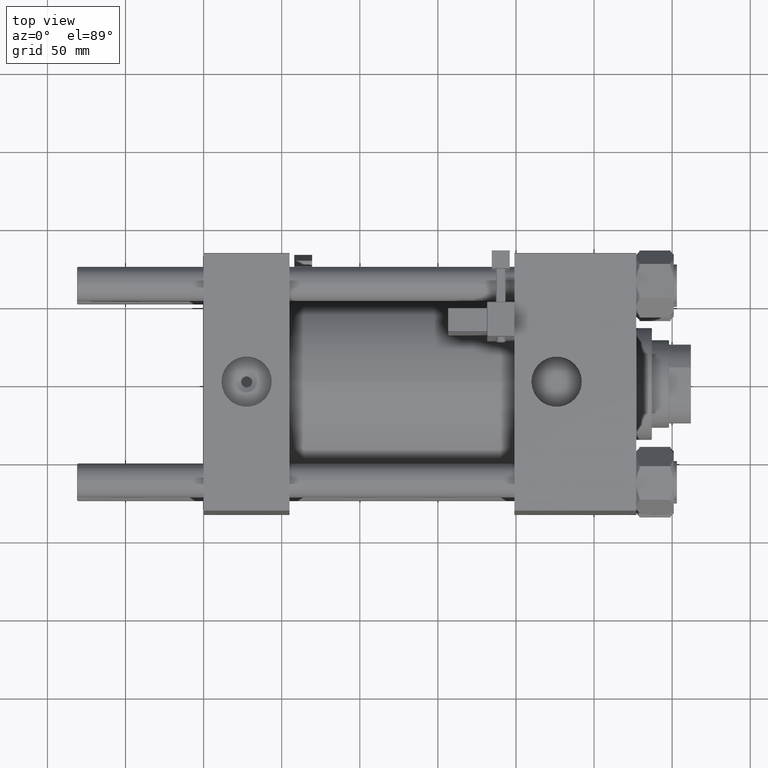
[diagram: clean part render]
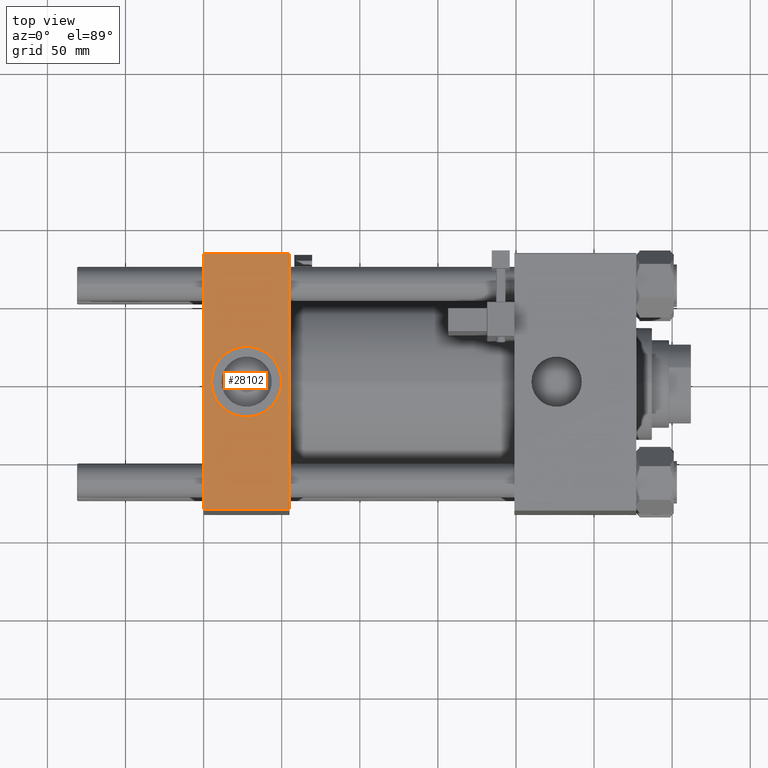
[diagram: same view with one face highlighted and labeled with its STEP entity id]
A machine part, top view. The second image highlights one B-rep face of the part: STEP entity #28102.
In plain terms, the highlighted planar face has unit normal (0, 0, -1).
Its self-contained STEP definition (entity closure, byte-faithful):
#1299 = LINE ( 'NONE', #1819, #7222 ) ;
#1819 = CARTESIAN_POINT ( 'NONE',  ( 0.000000000000000000, 82.00000000000005684, 82.50000000000002842 ) ) ;
#2119 = LINE ( 'NONE', #2916, #11703 ) ;
#2612 = LINE ( 'NONE', #35125, #40365 ) ;
#2916 = CARTESIAN_POINT ( 'NONE',  ( 55.00000000000000000, 82.50000000000002842, 82.50000000000002842 ) ) ;
#4508 = AXIS2_PLACEMENT_3D ( 'NONE', #43603, #7118, #48105 ) ;
#5622 = CIRCLE ( 'NONE', #37100, 22.50000000000000355 ) ;
#6056 = DIRECTION ( 'NONE',  ( 0.000000000000000000, 8.410780489584519171E-17, -1.000000000000000000 ) ) ;
#6861 = CARTESIAN_POINT ( 'NONE',  ( 0.000000000000000000, 82.00000000000005684, 82.50000000000002842 ) ) ;
#7118 = DIRECTION ( 'NONE',  ( 0.000000000000000000, 0.000000000000000000, 1.000000000000000000 ) ) ;
#7222 = VECTOR ( 'NONE', #30073, 1000.000000000000000 ) ;
#9132 = VERTEX_POINT ( 'NONE', #44289 ) ;
#10284 = LINE ( 'NONE', #10821, #38843 ) ;
#10403 = EDGE_LOOP ( 'NONE', ( #20690, #20826, #50568, #29762 ) ) ;
#10821 = CARTESIAN_POINT ( 'NONE',  ( 0.000000000000000000, 82.50000000000002842, 82.50000000000002842 ) ) ;
#11703 = VECTOR ( 'NONE', #34368, 1000.000000000000000 ) ;
#11750 = EDGE_CURVE ( 'NONE', #12726, #34362, #1299, .T. ) ;
#12726 = VERTEX_POINT ( 'NONE', #47614 ) ;
#13535 = DIRECTION ( 'NONE',  ( 0.000000000000000000, 1.000000000000000000, 8.410780489584519171E-17 ) ) ;
#13797 = FACE_BOUND ( 'NONE', #15260, .T. ) ;
#15260 = EDGE_LOOP ( 'NONE', ( #51044, #21046 ) ) ;
#15857 = VERTEX_POINT ( 'NONE', #50499 ) ;
#16015 = EDGE_CURVE ( 'NONE', #34362, #15857, #10284, .T. ) ;
#17273 = FACE_OUTER_BOUND ( 'NONE', #10403, .T. ) ;
#17595 = EDGE_CURVE ( 'NONE', #9132, #51859, #5622, .T. ) ;
#18047 = CARTESIAN_POINT ( 'NONE',  ( 27.50000000000000000, -8.673617379884037050E-15, 82.50000000000001421 ) ) ;
#18107 = DIRECTION ( 'NONE',  ( 1.000000000000000000, 0.000000000000000000, 0.000000000000000000 ) ) ;
#18560 = DIRECTION ( 'NONE',  ( 1.000000000000000000, 0.000000000000000000, 0.000000000000000000 ) ) ;
#20690 = ORIENTED_EDGE ( 'NONE', *, *, #16015, .T. ) ;
#20826 = ORIENTED_EDGE ( 'NONE', *, *, #44909, .T. ) ;
#21046 = ORIENTED_EDGE ( 'NONE', *, *, #17595, .F. ) ;
#21445 = EDGE_CURVE ( 'NONE', #12726, #41734, #2119, .T. ) ;
#22044 = CARTESIAN_POINT ( 'NONE',  ( 55.00000000000000000, 82.50000000000002842, 82.50000000000002842 ) ) ;
#26642 = CIRCLE ( 'NONE', #4508, 22.50000000000000355 ) ;
#26813 = DIRECTION ( 'NONE',  ( 0.000000000000000000, 0.000000000000000000, 1.000000000000000000 ) ) ;
#28102 = ADVANCED_FACE ( 'NONE', ( #13797, #17273 ), #33769, .F. ) ;
#29762 = ORIENTED_EDGE ( 'NONE', *, *, #11750, .T. ) ;
#30073 = DIRECTION ( 'NONE',  ( -1.000000000000000000, 0.000000000000000000, 0.000000000000000000 ) ) ;
#33769 = PLANE ( 'NONE',  #44112 ) ;
#34362 = VERTEX_POINT ( 'NONE', #6861 ) ;
#34368 = DIRECTION ( 'NONE',  ( 0.000000000000000000, -1.000000000000000000, -8.410780489584519171E-17 ) ) ;
#35125 = CARTESIAN_POINT ( 'NONE',  ( 55.00000000000000000, -81.99999999999997158, 82.50000000000001421 ) ) ;
#37100 = AXIS2_PLACEMENT_3D ( 'NONE', #18047, #26813, #18560 ) ;
#37398 = CARTESIAN_POINT ( 'NONE',  ( 50.00000000000000000, -8.673617379884037050E-15, 82.50000000000001421 ) ) ;
#38843 = VECTOR ( 'NONE', #39576, 1000.000000000000000 ) ;
#39576 = DIRECTION ( 'NONE',  ( 0.000000000000000000, -1.000000000000000000, -8.410780489584519171E-17 ) ) ;
#40365 = VECTOR ( 'NONE', #18107, 1000.000000000000000 ) ;
#41734 = VERTEX_POINT ( 'NONE', #52293 ) ;
#42101 = EDGE_CURVE ( 'NONE', #51859, #9132, #26642, .T. ) ;
#43603 = CARTESIAN_POINT ( 'NONE',  ( 27.50000000000000000, -8.673617379884037050E-15, 82.50000000000001421 ) ) ;
#44112 = AXIS2_PLACEMENT_3D ( 'NONE', #22044, #6056, #13535 ) ;
#44289 = CARTESIAN_POINT ( 'NONE',  ( 4.999999999999993783, -5.918162081802491483E-15, 82.50000000000001421 ) ) ;
#44909 = EDGE_CURVE ( 'NONE', #15857, #41734, #2612, .T. ) ;
#47614 = CARTESIAN_POINT ( 'NONE',  ( 55.00000000000000000, 82.00000000000005684, 82.50000000000002842 ) ) ;
#48105 = DIRECTION ( 'NONE',  ( 1.000000000000000000, 0.000000000000000000, 0.000000000000000000 ) ) ;
#50499 = CARTESIAN_POINT ( 'NONE',  ( 0.000000000000000000, -81.99999999999997158, 82.50000000000001421 ) ) ;
#50568 = ORIENTED_EDGE ( 'NONE', *, *, #21445, .F. ) ;
#51044 = ORIENTED_EDGE ( 'NONE', *, *, #42101, .F. ) ;
#51859 = VERTEX_POINT ( 'NONE', #37398 ) ;
#52293 = CARTESIAN_POINT ( 'NONE',  ( 55.00000000000000000, -81.99999999999997158, 82.50000000000001421 ) ) ;